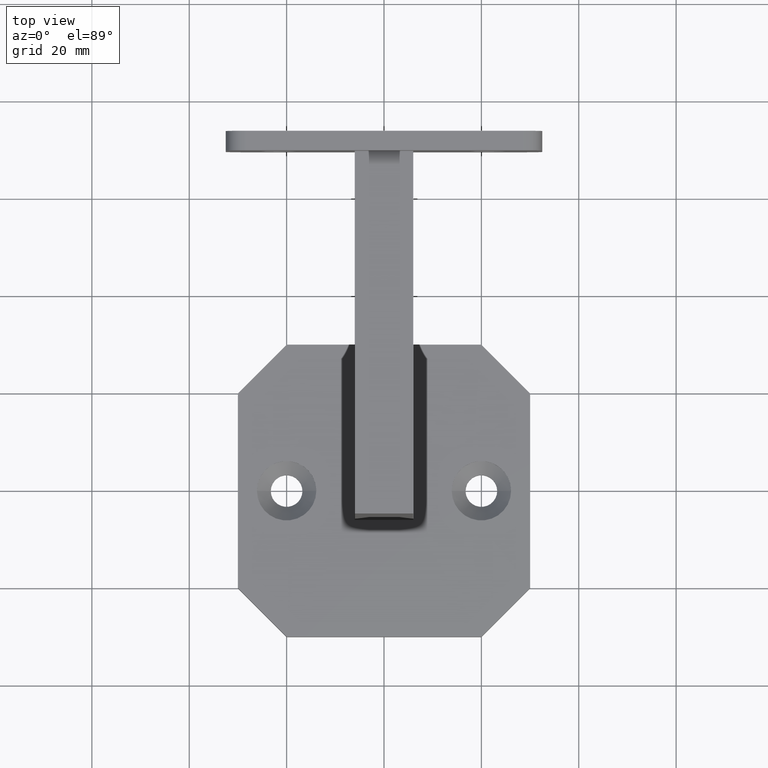
[diagram: clean part render]
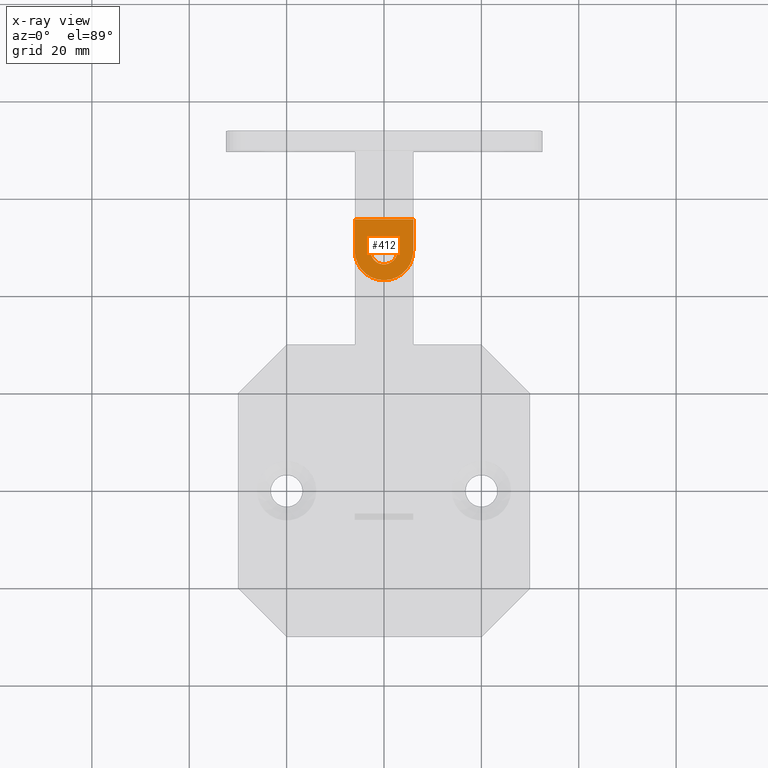
[diagram: x-ray — body ghosted, one internal face saturated and labeled with its STEP entity id]
A machine part, top view, then the same camera in x-ray: the body is ghosted and one INTERNAL B-rep face — a face not visible from any outside direction — is saturated and labeled: STEP entity #412.
In plain terms, the highlighted planar face has unit normal (0, 0, 1).
Its self-contained STEP definition (entity closure, byte-faithful):
#68 = EDGE_CURVE ( 'NONE', #5620, #8545, #496, .T. ) ;
#313 = CARTESIAN_POINT ( 'NONE',  ( -5.999999999999999112, -7.250000000000001776, 0.000000000000000000 ) ) ;
#412 = ADVANCED_FACE ( 'NONE', ( #11349, #2947 ), #7704, .F. ) ;
#450 = CARTESIAN_POINT ( 'NONE',  ( 7.528045273106889614E-16, -7.250000000000000888, 0.000000000000000000 ) ) ;
#496 = CIRCLE ( 'NONE', #6148, 6.000000000000000000 ) ;
#1664 = CARTESIAN_POINT ( 'NONE',  ( 6.000000000000001776, -13.25000000000000178, 0.000000000000000000 ) ) ;
#1678 = DIRECTION ( 'NONE',  ( 1.000000000000000000, 0.000000000000000000, 0.000000000000000000 ) ) ;
#2227 = EDGE_CURVE ( 'NONE', #4170, #5620, #4308, .T. ) ;
#2947 = FACE_OUTER_BOUND ( 'NONE', #15787, .T. ) ;
#3076 = DIRECTION ( 'NONE',  ( 1.000000000000000000, -0.000000000000000000, -0.000000000000000000 ) ) ;
#3192 = ORIENTED_EDGE ( 'NONE', *, *, #15776, .T. ) ;
#3251 = CARTESIAN_POINT ( 'NONE',  ( 6.000000000000001776, -0.7500000000000006661, 0.000000000000000000 ) ) ;
#3425 = CARTESIAN_POINT ( 'NONE',  ( 6.000000000000001776, -7.250000000000000000, 0.000000000000000000 ) ) ;
#4170 = VERTEX_POINT ( 'NONE', #3251 ) ;
#4308 = LINE ( 'NONE', #1664, #16017 ) ;
#5620 = VERTEX_POINT ( 'NONE', #3425 ) ;
#6142 = DIRECTION ( 'NONE',  ( -3.469446951953614189E-16, 1.000000000000000000, -0.000000000000000000 ) ) ;
#6148 = AXIS2_PLACEMENT_3D ( 'NONE', #450, #14698, #13066 ) ;
#6251 = VERTEX_POINT ( 'NONE', #313 ) ;
#6518 = ORIENTED_EDGE ( 'NONE', *, *, #17230, .T. ) ;
#6683 = LINE ( 'NONE', #21794, #15060 ) ;
#7536 = CARTESIAN_POINT ( 'NONE',  ( 1.734723475976807094E-15, -13.25000000000000178, 0.000000000000000000 ) ) ;
#7597 = DIRECTION ( 'NONE',  ( 0.000000000000000000, 0.000000000000000000, 1.000000000000000000 ) ) ;
#7685 = ORIENTED_EDGE ( 'NONE', *, *, #68, .T. ) ;
#7704 = PLANE ( 'NONE',  #8542 ) ;
#7883 = VERTEX_POINT ( 'NONE', #20963 ) ;
#8542 = AXIS2_PLACEMENT_3D ( 'NONE', #9578, #18676, #13551 ) ;
#8545 = VERTEX_POINT ( 'NONE', #7536 ) ;
#9172 = CIRCLE ( 'NONE', #11637, 2.749999999999997780 ) ;
#9379 = VECTOR ( 'NONE', #3076, 1000.000000000000000 ) ;
#9389 = DIRECTION ( 'NONE',  ( 1.000000000000000000, 0.000000000000000000, 0.000000000000000000 ) ) ;
#9475 = ORIENTED_EDGE ( 'NONE', *, *, #2227, .T. ) ;
#9578 = CARTESIAN_POINT ( 'NONE',  ( 0.000000000000000000, 0.000000000000000000, 0.000000000000000000 ) ) ;
#10717 = CARTESIAN_POINT ( 'NONE',  ( 1.734723475976807094E-15, -7.250000000000000888, 0.000000000000000000 ) ) ;
#11349 = FACE_BOUND ( 'NONE', #16835, .T. ) ;
#11637 = AXIS2_PLACEMENT_3D ( 'NONE', #20060, #7597, #9389 ) ;
#11868 = EDGE_CURVE ( 'NONE', #7883, #21847, #9172, .T. ) ;
#12109 = VERTEX_POINT ( 'NONE', #19029 ) ;
#13066 = DIRECTION ( 'NONE',  ( 1.000000000000000000, 0.000000000000000000, 0.000000000000000000 ) ) ;
#13355 = CARTESIAN_POINT ( 'NONE',  ( 0.000000000000000000, -7.250000000000002665, 0.000000000000000000 ) ) ;
#13551 = DIRECTION ( 'NONE',  ( 1.000000000000000000, 0.000000000000000000, -0.000000000000000000 ) ) ;
#13564 = LINE ( 'NONE', #22711, #9379 ) ;
#14360 = DIRECTION ( 'NONE',  ( -0.000000000000000000, -1.000000000000000000, -0.000000000000000000 ) ) ;
#14698 = DIRECTION ( 'NONE',  ( -0.000000000000000000, -0.000000000000000000, -1.000000000000000000 ) ) ;
#14716 = EDGE_CURVE ( 'NONE', #12109, #4170, #13564, .T. ) ;
#15060 = VECTOR ( 'NONE', #6142, 1000.000000000000000 ) ;
#15062 = DIRECTION ( 'NONE',  ( 1.000000000000000000, 0.000000000000000000, 0.000000000000000000 ) ) ;
#15218 = CIRCLE ( 'NONE', #18179, 2.749999999999997780 ) ;
#15530 = AXIS2_PLACEMENT_3D ( 'NONE', #10717, #22933, #1678 ) ;
#15776 = EDGE_CURVE ( 'NONE', #21847, #7883, #15218, .T. ) ;
#15787 = EDGE_LOOP ( 'NONE', ( #9475, #7685, #6518, #22281, #21270 ) ) ;
#16017 = VECTOR ( 'NONE', #14360, 1000.000000000000000 ) ;
#16110 = CARTESIAN_POINT ( 'NONE',  ( 2.749999999999997780, -7.250000000000002665, 0.000000000000000000 ) ) ;
#16835 = EDGE_LOOP ( 'NONE', ( #3192, #21992 ) ) ;
#17230 = EDGE_CURVE ( 'NONE', #8545, #6251, #22693, .T. ) ;
#18179 = AXIS2_PLACEMENT_3D ( 'NONE', #13355, #22138, #15062 ) ;
#18676 = DIRECTION ( 'NONE',  ( 0.000000000000000000, 0.000000000000000000, 1.000000000000000000 ) ) ;
#19029 = CARTESIAN_POINT ( 'NONE',  ( -6.000000000000001776, -0.7500000000000006661, 0.000000000000000000 ) ) ;
#20060 = CARTESIAN_POINT ( 'NONE',  ( 0.000000000000000000, -7.250000000000002665, 0.000000000000000000 ) ) ;
#20963 = CARTESIAN_POINT ( 'NONE',  ( -2.749999999999997780, -7.250000000000002665, 0.000000000000000000 ) ) ;
#21270 = ORIENTED_EDGE ( 'NONE', *, *, #14716, .T. ) ;
#21594 = EDGE_CURVE ( 'NONE', #6251, #12109, #6683, .T. ) ;
#21794 = CARTESIAN_POINT ( 'NONE',  ( -6.000000000000001776, -0.7500000000000006661, 0.000000000000000000 ) ) ;
#21847 = VERTEX_POINT ( 'NONE', #16110 ) ;
#21992 = ORIENTED_EDGE ( 'NONE', *, *, #11868, .T. ) ;
#22138 = DIRECTION ( 'NONE',  ( 0.000000000000000000, 0.000000000000000000, 1.000000000000000000 ) ) ;
#22281 = ORIENTED_EDGE ( 'NONE', *, *, #21594, .T. ) ;
#22693 = CIRCLE ( 'NONE', #15530, 6.000000000000000000 ) ;
#22711 = CARTESIAN_POINT ( 'NONE',  ( 6.000000000000001776, -0.7500000000000006661, 0.000000000000000000 ) ) ;
#22933 = DIRECTION ( 'NONE',  ( -0.000000000000000000, -0.000000000000000000, -1.000000000000000000 ) ) ;